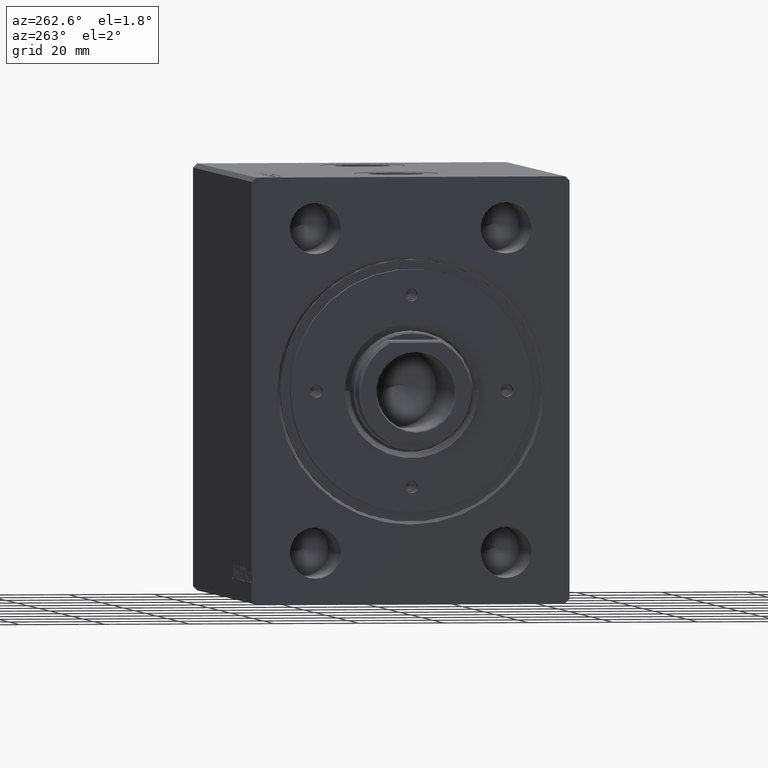
[diagram: clean part render]
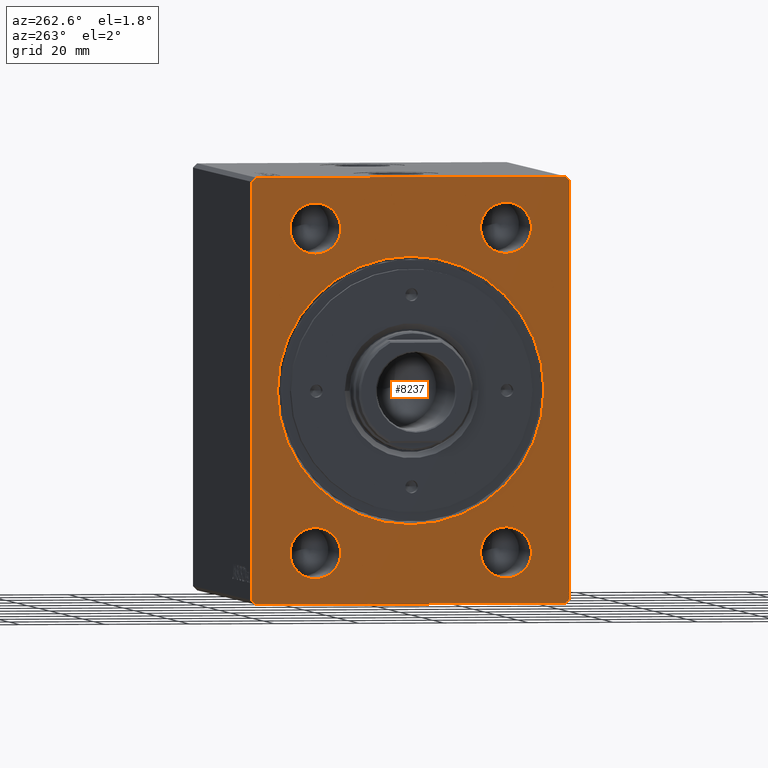
[diagram: same view with one face highlighted and labeled with its STEP entity id]
A machine part, auxiliary view. The second image highlights one B-rep face of the part: STEP entity #8237.
In plain terms, the highlighted planar face has unit normal (1, 0, 0).
Its self-contained STEP definition (entity closure, byte-faithful):
#9 = FACE_BOUND ( 'NONE', #16603, .T. ) ;
#455 = CARTESIAN_POINT ( 'NONE',  ( 0.000000000000000000, -37.50000000000001421, -49.00000000000000000 ) ) ;
#556 = EDGE_LOOP ( 'NONE', ( #26206, #19390 ) ) ;
#835 = VECTOR ( 'NONE', #34331, 1000.000000000000000 ) ;
#967 = CARTESIAN_POINT ( 'NONE',  ( 0.000000000000000000, -36.50000000000000711, -50.00000000000000000 ) ) ;
#1784 = CIRCLE ( 'NONE', #26642, 5.999999999999998224 ) ;
#1918 = CARTESIAN_POINT ( 'NONE',  ( 2.449293598294703949E-16, -22.50000000000000000, 32.00000000000000000 ) ) ;
#2089 = CARTESIAN_POINT ( 'NONE',  ( 0.000000000000000000, 37.50000000000000711, 49.00000000000000000 ) ) ;
#2112 = CARTESIAN_POINT ( 'NONE',  ( 2.449293598294703949E-16, 22.50000000000000000, -38.00000000000000000 ) ) ;
#2282 = EDGE_CURVE ( 'NONE', #22825, #40806, #31912, .T. ) ;
#2924 = EDGE_CURVE ( 'NONE', #18001, #28793, #22018, .T. ) ;
#4652 = VERTEX_POINT ( 'NONE', #7597 ) ;
#4715 = CARTESIAN_POINT ( 'NONE',  ( 0.000000000000000000, -36.50000000000000711, -50.00000000000000000 ) ) ;
#5047 = VERTEX_POINT ( 'NONE', #22731 ) ;
#5082 = DIRECTION ( 'NONE',  ( 0.000000000000000000, 0.000000000000000000, 1.000000000000000000 ) ) ;
#5821 = ORIENTED_EDGE ( 'NONE', *, *, #32144, .F. ) ;
#6297 = CARTESIAN_POINT ( 'NONE',  ( 0.000000000000000000, -37.50000000000001421, 48.99999999999998579 ) ) ;
#6716 = CARTESIAN_POINT ( 'NONE',  ( 0.000000000000000000, 0.000000000000000000, 0.000000000000000000 ) ) ;
#6963 = DIRECTION ( 'NONE',  ( 0.000000000000000000, 0.000000000000000000, 1.000000000000000000 ) ) ;
#7062 = DIRECTION ( 'NONE',  ( 1.000000000000000000, 0.000000000000000000, 0.000000000000000000 ) ) ;
#7489 = EDGE_CURVE ( 'NONE', #13143, #14627, #38132, .T. ) ;
#7597 = CARTESIAN_POINT ( 'NONE',  ( 2.449293598294703949E-16, -22.50000000000000000, -44.00000000000000711 ) ) ;
#7617 = EDGE_LOOP ( 'NONE', ( #29611, #39296 ) ) ;
#7648 = ORIENTED_EDGE ( 'NONE', *, *, #30020, .F. ) ;
#7706 = VERTEX_POINT ( 'NONE', #16308 ) ;
#8237 = ADVANCED_FACE ( 'NONE', ( #10668, #9, #37806, #16697, #23362, #26920 ), #40506, .F. ) ;
#8272 = ORIENTED_EDGE ( 'NONE', *, *, #2924, .F. ) ;
#8346 = CIRCLE ( 'NONE', #11200, 31.45000000000002061 ) ;
#8563 = DIRECTION ( 'NONE',  ( 0.000000000000000000, 0.000000000000000000, 1.000000000000000000 ) ) ;
#9060 = CARTESIAN_POINT ( 'NONE',  ( 2.449293598294703949E-16, -22.50000000000000000, 38.00000000000000000 ) ) ;
#10024 = DIRECTION ( 'NONE',  ( 1.000000000000000000, 0.000000000000000000, 0.000000000000000000 ) ) ;
#10224 = EDGE_CURVE ( 'NONE', #23963, #13143, #43510, .T. ) ;
#10363 = CARTESIAN_POINT ( 'NONE',  ( 0.000000000000000000, -36.50000000000001421, 49.99999999999998579 ) ) ;
#10415 = EDGE_CURVE ( 'NONE', #16433, #22825, #14509, .T. ) ;
#10462 = AXIS2_PLACEMENT_3D ( 'NONE', #2112, #33240, #8563 ) ;
#10668 = FACE_BOUND ( 'NONE', #25482, .T. ) ;
#10690 = DIRECTION ( 'NONE',  ( 1.000000000000000000, 0.000000000000000000, 0.000000000000000000 ) ) ;
#11070 = CARTESIAN_POINT ( 'NONE',  ( 2.449293598294703949E-16, 22.50000000000000000, 38.00000000000000000 ) ) ;
#11159 = VECTOR ( 'NONE', #27590, 1000.000000000000114 ) ;
#11200 = AXIS2_PLACEMENT_3D ( 'NONE', #19965, #7062, #27730 ) ;
#11312 = ORIENTED_EDGE ( 'NONE', *, *, #15279, .F. ) ;
#11314 = VECTOR ( 'NONE', #37936, 1000.000000000000114 ) ;
#11440 = VECTOR ( 'NONE', #15870, 1000.000000000000114 ) ;
#11818 = CARTESIAN_POINT ( 'NONE',  ( 0.000000000000000000, 37.50000000000000711, 49.00000000000000000 ) ) ;
#12050 = AXIS2_PLACEMENT_3D ( 'NONE', #11070, #38866, #18625 ) ;
#12282 = CARTESIAN_POINT ( 'NONE',  ( 2.449293598294703949E-16, -22.50000000000000000, 38.00000000000000000 ) ) ;
#12456 = CARTESIAN_POINT ( 'NONE',  ( 2.449293598294703949E-16, 22.50000000000000000, 32.00000000000000000 ) ) ;
#13143 = VERTEX_POINT ( 'NONE', #24679 ) ;
#13572 = VECTOR ( 'NONE', #18269, 1000.000000000000000 ) ;
#13619 = EDGE_CURVE ( 'NONE', #40806, #23963, #37663, .T. ) ;
#14347 = AXIS2_PLACEMENT_3D ( 'NONE', #36939, #10024, #20247 ) ;
#14509 = LINE ( 'NONE', #4715, #13572 ) ;
#14595 = EDGE_CURVE ( 'NONE', #27963, #4652, #22903, .T. ) ;
#14627 = VERTEX_POINT ( 'NONE', #10363 ) ;
#15120 = AXIS2_PLACEMENT_3D ( 'NONE', #23985, #40907, #33793 ) ;
#15191 = DIRECTION ( 'NONE',  ( -1.000000000000000000, -0.000000000000000000, -0.000000000000000000 ) ) ;
#15279 = EDGE_CURVE ( 'NONE', #4652, #27963, #33586, .T. ) ;
#15870 = DIRECTION ( 'NONE',  ( 0.000000000000000000, -0.7071067811865474617, 0.7071067811865474617 ) ) ;
#16059 = DIRECTION ( 'NONE',  ( 0.000000000000000000, -0.7071067811865474617, -0.7071067811865474617 ) ) ;
#16131 = CARTESIAN_POINT ( 'NONE',  ( 0.000000000000000000, 37.50000000000000711, -49.00000000000000000 ) ) ;
#16179 = AXIS2_PLACEMENT_3D ( 'NONE', #9060, #42447, #5082 ) ;
#16256 = VERTEX_POINT ( 'NONE', #30561 ) ;
#16308 = CARTESIAN_POINT ( 'NONE',  ( 0.000000000000000000, 0.000000000000000000, 31.45000000000002061 ) ) ;
#16433 = VERTEX_POINT ( 'NONE', #967 ) ;
#16603 = EDGE_LOOP ( 'NONE', ( #23164, #11312 ) ) ;
#16697 = FACE_BOUND ( 'NONE', #40841, .T. ) ;
#17285 = CARTESIAN_POINT ( 'NONE',  ( 2.449293598294703949E-16, 22.50000000000000000, 44.00000000000000000 ) ) ;
#17769 = VERTEX_POINT ( 'NONE', #20880 ) ;
#17870 = CARTESIAN_POINT ( 'NONE',  ( 0.000000000000000000, -37.50000000000001421, 48.99999999999998579 ) ) ;
#18001 = VERTEX_POINT ( 'NONE', #17285 ) ;
#18175 = ORIENTED_EDGE ( 'NONE', *, *, #10224, .F. ) ;
#18191 = CARTESIAN_POINT ( 'NONE',  ( 2.449293598294703949E-16, 22.50000000000000000, -44.00000000000000000 ) ) ;
#18269 = DIRECTION ( 'NONE',  ( 0.000000000000000000, 1.000000000000000000, 0.000000000000000000 ) ) ;
#18625 = DIRECTION ( 'NONE',  ( 0.000000000000000000, 0.000000000000000000, 1.000000000000000000 ) ) ;
#19390 = ORIENTED_EDGE ( 'NONE', *, *, #29678, .F. ) ;
#19393 = LINE ( 'NONE', #22292, #25387 ) ;
#19715 = CARTESIAN_POINT ( 'NONE',  ( 2.449293598294703949E-16, -22.50000000000000000, -38.00000000000000711 ) ) ;
#19965 = CARTESIAN_POINT ( 'NONE',  ( 0.000000000000000000, 0.000000000000000000, 0.000000000000000000 ) ) ;
#20083 = DIRECTION ( 'NONE',  ( -1.000000000000000000, -0.000000000000000000, -0.000000000000000000 ) ) ;
#20247 = DIRECTION ( 'NONE',  ( 0.000000000000000000, 0.000000000000000000, -1.000000000000000000 ) ) ;
#20310 = VERTEX_POINT ( 'NONE', #1918 ) ;
#20352 = CARTESIAN_POINT ( 'NONE',  ( 0.000000000000000000, 36.50000000000000711, 50.00000000000000000 ) ) ;
#20699 = LINE ( 'NONE', #455, #11159 ) ;
#20880 = CARTESIAN_POINT ( 'NONE',  ( 0.000000000000000000, -37.50000000000001421, -49.00000000000000000 ) ) ;
#21603 = CARTESIAN_POINT ( 'NONE',  ( 0.000000000000000000, 36.50000000000000711, -50.00000000000000000 ) ) ;
#21643 = CARTESIAN_POINT ( 'NONE',  ( 2.449293598294703949E-16, 22.50000000000000000, -38.00000000000000000 ) ) ;
#21680 = CARTESIAN_POINT ( 'NONE',  ( 0.000000000000000000, 36.50000000000000711, -50.00000000000000000 ) ) ;
#22018 = CIRCLE ( 'NONE', #12050, 5.999999999999998224 ) ;
#22292 = CARTESIAN_POINT ( 'NONE',  ( 0.000000000000000000, -36.50000000000001421, 49.99999999999998579 ) ) ;
#22731 = CARTESIAN_POINT ( 'NONE',  ( 0.000000000000000000, 3.851514183318427194E-15, -31.45000000000002061 ) ) ;
#22825 = VERTEX_POINT ( 'NONE', #21603 ) ;
#22903 = CIRCLE ( 'NONE', #30012, 5.999999999999998224 ) ;
#23164 = ORIENTED_EDGE ( 'NONE', *, *, #14595, .F. ) ;
#23362 = FACE_BOUND ( 'NONE', #7617, .T. ) ;
#23653 = CARTESIAN_POINT ( 'NONE',  ( 0.000000000000000000, 37.50000000000000711, -49.00000000000000000 ) ) ;
#23859 = EDGE_CURVE ( 'NONE', #28793, #18001, #28110, .T. ) ;
#23895 = LINE ( 'NONE', #17870, #36792 ) ;
#23963 = VERTEX_POINT ( 'NONE', #11818 ) ;
#23985 = CARTESIAN_POINT ( 'NONE',  ( 2.449293598294703949E-16, -22.50000000000000000, -38.00000000000000711 ) ) ;
#23989 = CIRCLE ( 'NONE', #10462, 5.999999999999998224 ) ;
#24042 = DIRECTION ( 'NONE',  ( 0.000000000000000000, 0.000000000000000000, -1.000000000000000000 ) ) ;
#24489 = CIRCLE ( 'NONE', #42986, 31.45000000000002061 ) ;
#24628 = ORIENTED_EDGE ( 'NONE', *, *, #10415, .F. ) ;
#24679 = CARTESIAN_POINT ( 'NONE',  ( 0.000000000000000000, 36.50000000000000711, 50.00000000000000000 ) ) ;
#25387 = VECTOR ( 'NONE', #16059, 1000.000000000000114 ) ;
#25482 = EDGE_LOOP ( 'NONE', ( #8272, #32089 ) ) ;
#25519 = AXIS2_PLACEMENT_3D ( 'NONE', #21643, #15191, #35216 ) ;
#26160 = EDGE_CURVE ( 'NONE', #20310, #16256, #1784, .T. ) ;
#26206 = ORIENTED_EDGE ( 'NONE', *, *, #42806, .F. ) ;
#26326 = EDGE_CURVE ( 'NONE', #7706, #5047, #24489, .T. ) ;
#26642 = AXIS2_PLACEMENT_3D ( 'NONE', #12282, #29176, #30492 ) ;
#26830 = DIRECTION ( 'NONE',  ( -1.000000000000000000, -0.000000000000000000, -0.000000000000000000 ) ) ;
#26920 = FACE_OUTER_BOUND ( 'NONE', #37769, .T. ) ;
#27590 = DIRECTION ( 'NONE',  ( 0.000000000000000000, 0.7071067811865500152, -0.7071067811865451302 ) ) ;
#27730 = DIRECTION ( 'NONE',  ( 0.000000000000000000, 0.000000000000000000, -1.000000000000000000 ) ) ;
#27821 = ORIENTED_EDGE ( 'NONE', *, *, #31402, .F. ) ;
#27963 = VERTEX_POINT ( 'NONE', #33180 ) ;
#28080 = EDGE_CURVE ( 'NONE', #17769, #16433, #20699, .T. ) ;
#28110 = CIRCLE ( 'NONE', #30930, 5.999999999999998224 ) ;
#28221 = VERTEX_POINT ( 'NONE', #36245 ) ;
#28793 = VERTEX_POINT ( 'NONE', #12456 ) ;
#29176 = DIRECTION ( 'NONE',  ( -1.000000000000000000, -0.000000000000000000, -0.000000000000000000 ) ) ;
#29503 = ORIENTED_EDGE ( 'NONE', *, *, #7489, .F. ) ;
#29611 = ORIENTED_EDGE ( 'NONE', *, *, #26326, .T. ) ;
#29678 = EDGE_CURVE ( 'NONE', #31262, #28221, #23989, .T. ) ;
#30012 = AXIS2_PLACEMENT_3D ( 'NONE', #19715, #26830, #37500 ) ;
#30020 = EDGE_CURVE ( 'NONE', #14627, #41817, #19393, .T. ) ;
#30492 = DIRECTION ( 'NONE',  ( 0.000000000000000000, 0.000000000000000000, 1.000000000000000000 ) ) ;
#30561 = CARTESIAN_POINT ( 'NONE',  ( 2.449293598294703949E-16, -22.50000000000000000, 44.00000000000000000 ) ) ;
#30930 = AXIS2_PLACEMENT_3D ( 'NONE', #33664, #20083, #6963 ) ;
#31240 = DIRECTION ( 'NONE',  ( 0.000000000000000000, -1.000000000000000000, -1.901066822988281457E-16 ) ) ;
#31262 = VERTEX_POINT ( 'NONE', #18191 ) ;
#31402 = EDGE_CURVE ( 'NONE', #16256, #20310, #43216, .T. ) ;
#31912 = LINE ( 'NONE', #21680, #11314 ) ;
#32089 = ORIENTED_EDGE ( 'NONE', *, *, #23859, .F. ) ;
#32144 = EDGE_CURVE ( 'NONE', #41817, #17769, #23895, .T. ) ;
#33117 = ORIENTED_EDGE ( 'NONE', *, *, #2282, .F. ) ;
#33180 = CARTESIAN_POINT ( 'NONE',  ( 2.449293598294703949E-16, -22.50000000000000000, -32.00000000000000711 ) ) ;
#33240 = DIRECTION ( 'NONE',  ( -1.000000000000000000, -0.000000000000000000, -0.000000000000000000 ) ) ;
#33342 = CIRCLE ( 'NONE', #25519, 5.999999999999998224 ) ;
#33586 = CIRCLE ( 'NONE', #15120, 5.999999999999998224 ) ;
#33664 = CARTESIAN_POINT ( 'NONE',  ( 2.449293598294703949E-16, 22.50000000000000000, 38.00000000000000000 ) ) ;
#33793 = DIRECTION ( 'NONE',  ( 0.000000000000000000, 0.000000000000000000, 1.000000000000000000 ) ) ;
#33966 = EDGE_CURVE ( 'NONE', #5047, #7706, #8346, .T. ) ;
#34197 = VECTOR ( 'NONE', #31240, 1000.000000000000000 ) ;
#34331 = DIRECTION ( 'NONE',  ( 0.000000000000000000, 0.000000000000000000, 1.000000000000000000 ) ) ;
#35216 = DIRECTION ( 'NONE',  ( 0.000000000000000000, 0.000000000000000000, 1.000000000000000000 ) ) ;
#35722 = ORIENTED_EDGE ( 'NONE', *, *, #28080, .F. ) ;
#36245 = CARTESIAN_POINT ( 'NONE',  ( 2.449293598294703949E-16, 22.50000000000000000, -32.00000000000000000 ) ) ;
#36792 = VECTOR ( 'NONE', #40597, 1000.000000000000000 ) ;
#36939 = CARTESIAN_POINT ( 'NONE',  ( 0.000000000000000000, 0.000000000000000000, 0.000000000000000000 ) ) ;
#37243 = ORIENTED_EDGE ( 'NONE', *, *, #13619, .F. ) ;
#37500 = DIRECTION ( 'NONE',  ( 0.000000000000000000, 0.000000000000000000, 1.000000000000000000 ) ) ;
#37663 = LINE ( 'NONE', #23653, #835 ) ;
#37769 = EDGE_LOOP ( 'NONE', ( #18175, #37243, #33117, #24628, #35722, #5821, #7648, #29503 ) ) ;
#37806 = FACE_BOUND ( 'NONE', #556, .T. ) ;
#37936 = DIRECTION ( 'NONE',  ( 0.000000000000000000, 0.7071067811865474617, 0.7071067811865474617 ) ) ;
#38132 = LINE ( 'NONE', #20352, #34197 ) ;
#38866 = DIRECTION ( 'NONE',  ( -1.000000000000000000, -0.000000000000000000, -0.000000000000000000 ) ) ;
#39296 = ORIENTED_EDGE ( 'NONE', *, *, #33966, .T. ) ;
#40506 = PLANE ( 'NONE',  #14347 ) ;
#40597 = DIRECTION ( 'NONE',  ( 0.000000000000000000, 0.000000000000000000, -1.000000000000000000 ) ) ;
#40806 = VERTEX_POINT ( 'NONE', #16131 ) ;
#40841 = EDGE_LOOP ( 'NONE', ( #27821, #42898 ) ) ;
#40907 = DIRECTION ( 'NONE',  ( -1.000000000000000000, -0.000000000000000000, -0.000000000000000000 ) ) ;
#41817 = VERTEX_POINT ( 'NONE', #6297 ) ;
#42447 = DIRECTION ( 'NONE',  ( -1.000000000000000000, -0.000000000000000000, -0.000000000000000000 ) ) ;
#42806 = EDGE_CURVE ( 'NONE', #28221, #31262, #33342, .T. ) ;
#42898 = ORIENTED_EDGE ( 'NONE', *, *, #26160, .F. ) ;
#42986 = AXIS2_PLACEMENT_3D ( 'NONE', #6716, #10690, #24042 ) ;
#43216 = CIRCLE ( 'NONE', #16179, 5.999999999999998224 ) ;
#43510 = LINE ( 'NONE', #2089, #11440 ) ;